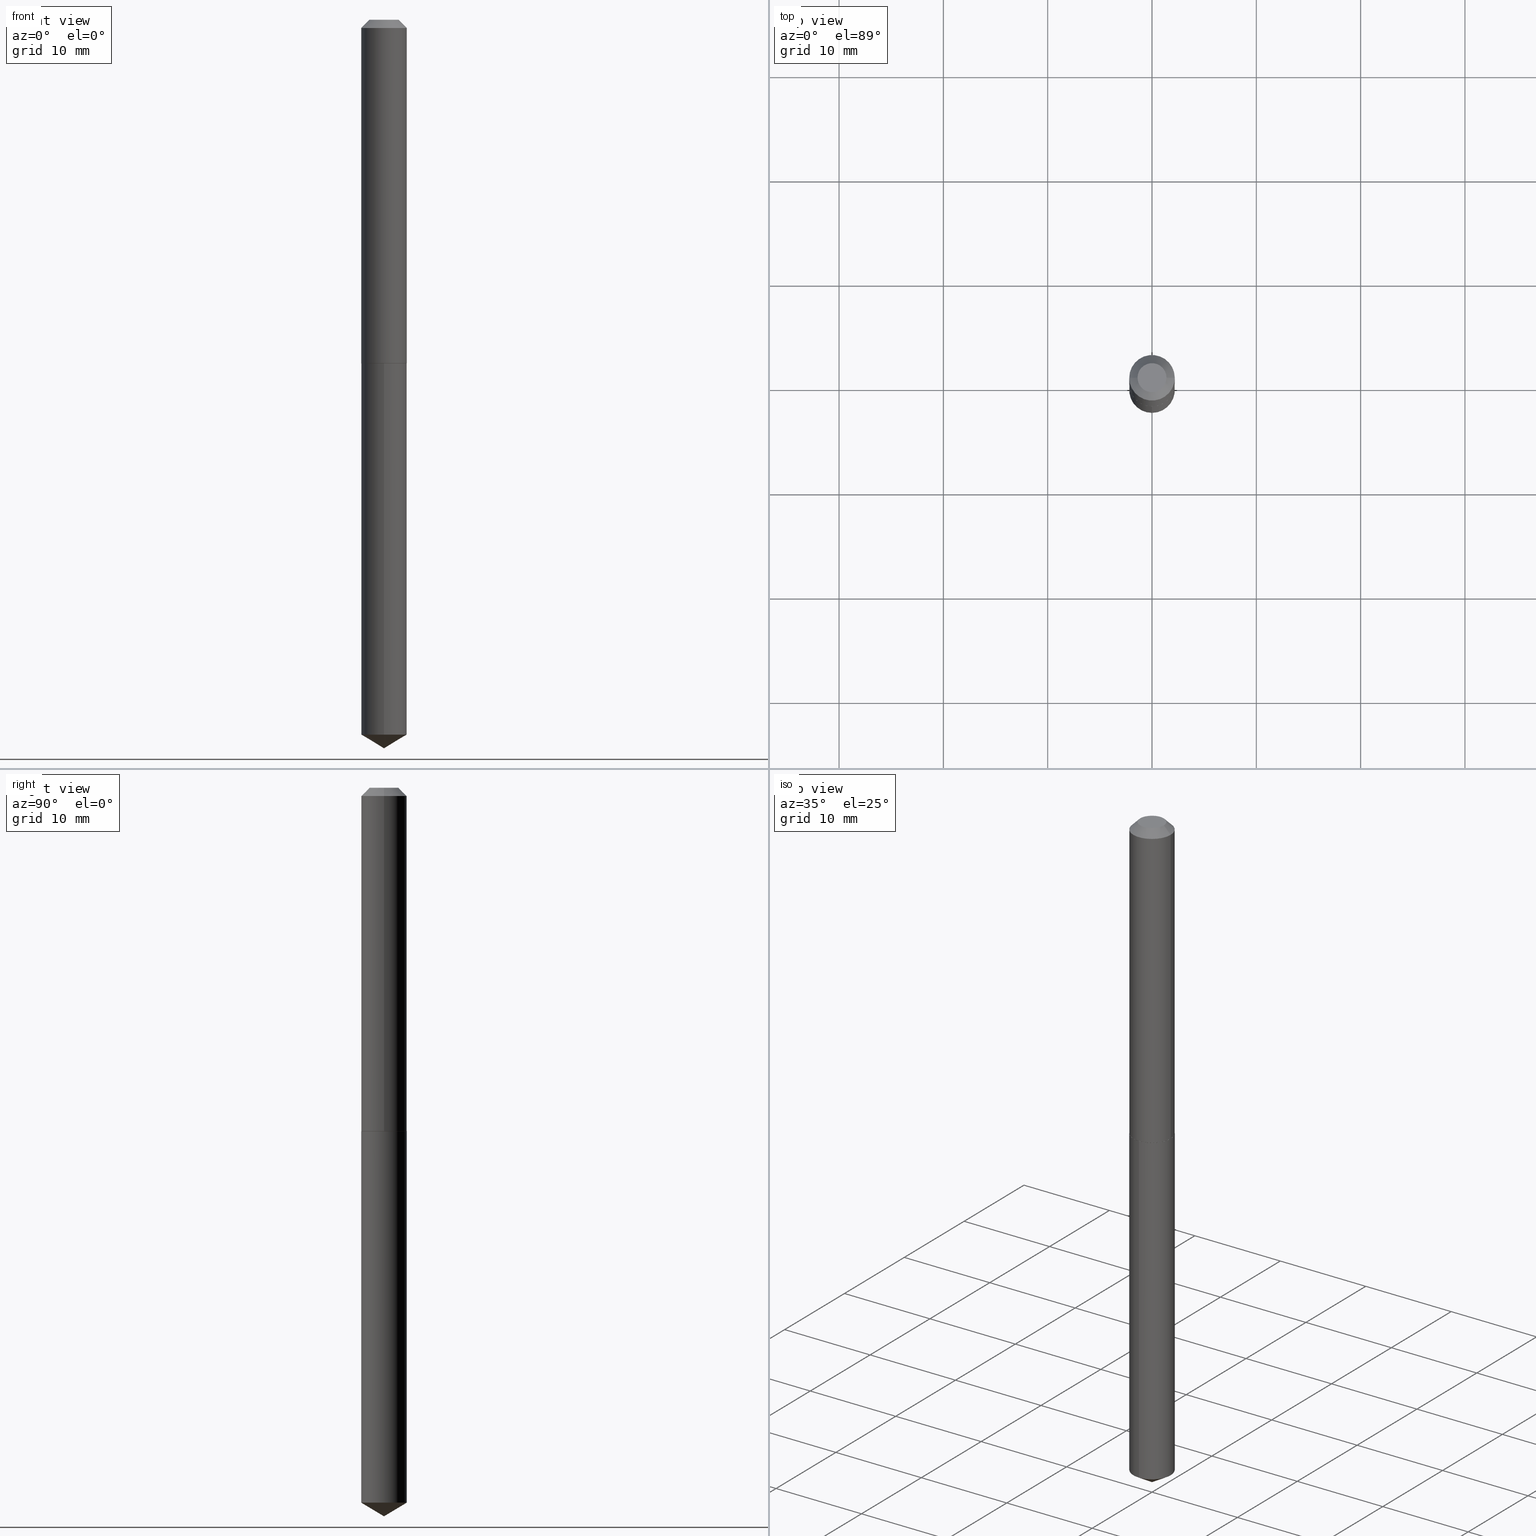
[diagram: canonical four-view strip — front | top / right | iso, engineering-drawing reading convention]
A machine part, canonical four-view strip (front | top / right | iso — engineering-drawing reading convention). The complete STEP part file that produces these views, byte-faithful:
ISO-10303-21;
HEADER;
FILE_DESCRIPTION (( 'STEP AP203' ),
    '1' );
FILE_NAME ('57149.STEP',
    '2024-04-22T22:57:38',
    ( '' ),
    ( '' ),
    'SwSTEP 2.0',
    'SolidWorks 2023',
    '' );
FILE_SCHEMA (( 'CONFIG_CONTROL_DESIGN' ));
ENDSEC;

DATA;
#1 = APPROVAL_STATUS ( 'not_yet_approved' ) ;
#2 = EDGE_CURVE ( 'NONE', #336, #278, #208, .T. ) ;
#3 = VERTEX_POINT ( 'NONE', #186 ) ;
#4 = PLANE ( 'NONE',  #227 ) ;
#5 = ORIENTED_EDGE ( 'NONE', *, *, #143, .T. ) ;
#6 = DIRECTION ( 'NONE',  ( 2.445533378666722655E-29, -3.491388867374276404E-15, -1.000000000000000000 ) ) ;
#7 = VERTEX_POINT ( 'NONE', #247 ) ;
#8 = DIRECTION ( 'NONE',  ( 6.090539988449787113E-15, 0.8571673007021152202, 0.5150380749100493816 ) ) ;
#9 = VECTOR ( 'NONE', #15, 39.37007874015748143 ) ;
#10 = CC_DESIGN_PERSON_AND_ORGANIZATION_ASSIGNMENT ( #244, #212, ( #274 ) ) ;
#11 = CARTESIAN_POINT ( 'NONE',  ( -6.001856421470686521E-16, -0.08595000000000943552, -2.698356029794580557 ) ) ;
#12 = DIRECTION ( 'NONE',  ( -6.982962677686268288E-15, -1.000000000000000000, 3.468864327941578437E-15 ) ) ;
#13 = CARTESIAN_POINT ( 'NONE',  ( 3.170305760338410638E-29, -4.526356407676253525E-15, -1.296399999999999775 ) ) ;
#14 = VECTOR ( 'NONE', #165, 39.37007874015748143 ) ;
#15 = DIRECTION ( 'NONE',  ( -2.445533378666723496E-29, 3.491388867374276404E-15, 1.000000000000000000 ) ) ;
#16 = DIRECTION ( 'NONE',  ( -2.445468806185136877E-29, 3.491481338843145188E-15, 1.000000000000000000 ) ) ;
#17 = CC_DESIGN_DATE_AND_TIME_ASSIGNMENT ( #168, #264, ( #279 ) ) ;
#18 = CARTESIAN_POINT ( 'NONE',  ( 3.171528494741502879E-29, -4.528102148345674239E-15, -1.296899999999999720 ) ) ;
#19 = DIMENSIONAL_EXPONENTS ( 1.000000000000000000, 0.000000000000000000, 0.000000000000000000, 0.000000000000000000, 0.000000000000000000, 0.000000000000000000, 0.000000000000000000 ) ;
#20 = CLOSED_SHELL ( 'NONE', ( #246, #136, #111, #282, #73 ) ) ;
#21 = CARTESIAN_POINT ( 'NONE',  ( 6.107114813858720685E-16, 0.08594999999999056173, -2.698356029794581890 ) ) ;
#22 = CIRCLE ( 'NONE', #162, 0.08594999999999998475 ) ;
#23 = EDGE_CURVE ( 'NONE', #60, #160, #71, .T. ) ;
#24 = FACE_OUTER_BOUND ( 'NONE', #88, .T. ) ;
#25 = VERTEX_POINT ( 'NONE', #285 ) ;
#26 = EDGE_CURVE ( 'NONE', #160, #25, #220, .T. ) ;
#27 = CARTESIAN_POINT ( 'NONE',  ( -0.05469999999999999168, 4.365224543888621036E-16, 1.469576158948197857E-19 ) ) ;
#28 = AXIS2_PLACEMENT_3D ( 'NONE', #81, #380, #381 ) ;
#29 = ORIENTED_EDGE ( 'NONE', *, *, #2, .T. ) ;
#30 = CONICAL_SURFACE ( 'NONE', #108, 0.08595000000000012352, 0.7853981633978409649 ) ;
#31 = ORIENTED_EDGE ( 'NONE', *, *, #378, .F. ) ;
#32 = PERSON_AND_ORGANIZATION ( #67, #387 ) ;
#33 = EDGE_LOOP ( 'NONE', ( #56, #44, #301, #149 ) ) ;
#34 = SECURITY_CLASSIFICATION_LEVEL ( 'unclassified' ) ;
#35 = ORIENTED_EDGE ( 'NONE', *, *, #315, .T. ) ;
#36 = AXIS2_PLACEMENT_3D ( 'NONE', #217, #344, #43 ) ;
#37 = LOCAL_TIME ( 18, 57, 38.00000000000000000, #209 ) ;
#38 = CARTESIAN_POINT ( 'NONE',  ( 3.170305760338410638E-29, -4.526356407676253525E-15, -1.296399999999999775 ) ) ;
#39 = DIRECTION ( 'NONE',  ( 1.000000000000000000, -6.982962677686266711E-15, 4.876156802008353939E-29 ) ) ;
#40 = CC_DESIGN_PERSON_AND_ORGANIZATION_ASSIGNMENT ( #63, #339, ( #274 ) ) ;
#41 = FACE_OUTER_BOUND ( 'NONE', #83, .T. ) ;
#42 = AXIS2_PLACEMENT_3D ( 'NONE', #13, #325, #137 ) ;
#43 = DIRECTION ( 'NONE',  ( 1.000000000000000000, -6.982962677686266711E-15, 4.876176775795936353E-29 ) ) ;
#44 = ORIENTED_EDGE ( 'NONE', *, *, #198, .T. ) ;
#45 = DIRECTION ( 'NONE',  ( -6.982962677686266711E-15, -1.000000000000000000, 3.178415350394722068E-15 ) ) ;
#46 = AXIS2_PLACEMENT_3D ( 'NONE', #100, #66, #184 ) ;
#47 = CC_DESIGN_APPROVAL ( #260, ( #279 ) ) ;
#48 = PRODUCT_DEFINITION_SHAPE ( 'NONE', 'NONE',  #279 ) ;
#49 = DIRECTION ( 'NONE',  ( 1.000000000000000000, -6.982962677686266711E-15, 0.000000000000000000 ) ) ;
#50 = CARTESIAN_POINT ( 'NONE',  ( -0.08595000000000005413, 6.107114813858064944E-16, -4.227824710074094392E-30 ) ) ;
#51 = CARTESIAN_POINT ( 'NONE',  ( 6.725049303230749519E-29, -9.601559237775213361E-15, -2.750000000000000000 ) ) ;
#52 = AXIS2_PLACEMENT_3D ( 'NONE', #68, #6, #191 ) ;
#53 = DIRECTION ( 'NONE',  ( -1.000000000000000000, 6.982962677686265922E-15, -4.876176775795935793E-29 ) ) ;
#54 = VECTOR ( 'NONE', #229, 39.37007874015748143 ) ;
#55 = CARTESIAN_POINT ( 'NONE',  ( 3.170305760338410638E-29, -4.526356407676253525E-15, -1.296399999999999775 ) ) ;
#56 = ORIENTED_EDGE ( 'NONE', *, *, #252, .F. ) ;
#57 = APPLICATION_PROTOCOL_DEFINITION ( 'international standard', 'config_control_design', 1994, #388 ) ;
#58 = ORIENTED_EDGE ( 'NONE', *, *, #69, .F. ) ;
#59 = CARTESIAN_POINT ( 'NONE',  ( 3.171528494741502879E-29, -4.528102148345674239E-15, -1.296899999999999720 ) ) ;
#60 = VERTEX_POINT ( 'NONE', #127 ) ;
#61 = CALENDAR_DATE ( 2024, 22, 4 ) ;
#62 = ORIENTED_EDGE ( 'NONE', *, *, #95, .F. ) ;
#63 = PERSON_AND_ORGANIZATION ( #67, #387 ) ;
#64 = DATE_TIME_ROLE ( 'classification_date' ) ;
#65 = FACE_OUTER_BOUND ( 'NONE', #33, .T. ) ;
#66 = DIRECTION ( 'NONE',  ( -2.445533378666723216E-29, 3.491388867374276010E-15, 1.000000000000000000 ) ) ;
#67 = PERSON ( 'UNSPECIFIED', 'UNSPECIFIED', 'UNSPECIFIED', ('UNSPECIFIED'), ('UNSPECIFIED'), ('UNSPECIFIED') ) ;
#68 = CARTESIAN_POINT ( 'NONE',  ( 3.171528494741502879E-29, -4.528102148345674239E-15, -1.296899999999999720 ) ) ;
#69 = EDGE_CURVE ( 'NONE', #121, #268, #309, .T. ) ;
#70 = LINE ( 'NONE', #130, #326 ) ;
#71 = CIRCLE ( 'NONE', #194, 0.08545000000000010920 ) ;
#72 = AXIS2_PLACEMENT_3D ( 'NONE', #291, #164, #288 ) ;
#73 = ADVANCED_FACE ( 'NONE', ( #245 ), #93, .F. ) ;
#74 = DIRECTION ( 'NONE',  ( -2.445533378666723496E-29, 3.491388867374276404E-15, 1.000000000000000000 ) ) ;
#75 = DIRECTION ( 'NONE',  ( -2.445533378666723216E-29, 3.491388867374276010E-15, 1.000000000000000000 ) ) ;
#76 = CYLINDRICAL_SURFACE ( 'NONE', #157, 0.08594999999999998475 ) ;
#77 = ADVANCED_FACE ( 'NONE', ( #41 ), #135, .T. ) ;
#78 = CC_DESIGN_SECURITY_CLASSIFICATION ( #125, ( #274 ) ) ;
#79 = DIRECTION ( 'NONE',  ( -1.000000000000000000, 6.982962677686266711E-15, 0.000000000000000000 ) ) ;
#80 = DIRECTION ( 'NONE',  ( -0.7071067811868251285, 7.493145998871357591E-15, 0.7071067811862699060 ) ) ;
#81 = CARTESIAN_POINT ( 'NONE',  ( 7.642090019328600035E-31, -1.091087918388489897E-16, -0.03125000000000020123 ) ) ;
#82 = AXIS2_PLACEMENT_3D ( 'NONE', #377, #192, #79 ) ;
#83 = EDGE_LOOP ( 'NONE', ( #205, #116, #150, #386 ) ) ;
#84 = DIRECTION ( 'NONE',  ( -2.445468806185136597E-29, 3.491481338843145583E-15, 1.000000000000000000 ) ) ;
#85 = EDGE_LOOP ( 'NONE', ( #101, #299, #239, #31 ) ) ;
#86 = ADVANCED_FACE ( 'NONE', ( #65 ), #218, .T. ) ;
#87 = APPROVAL_ROLE ( '' ) ;
#88 = EDGE_LOOP ( 'NONE', ( #273, #181 ) ) ;
#89 = AXIS2_PLACEMENT_3D ( 'NONE', #18, #196, #45 ) ;
#90 = DIRECTION ( 'NONE',  ( 0.000000000000000000, 0.000000000000000000, 1.000000000000000000 ) ) ;
#91 = ORIENTED_EDGE ( 'NONE', *, *, #255, .T. ) ;
#92 = APPROVAL_STATUS ( 'not_yet_approved' ) ;
#93 = PLANE ( 'NONE',  #52 ) ;
#94 = APPROVAL_STATUS ( 'not_yet_approved' ) ;
#95 = EDGE_CURVE ( 'NONE', #121, #207, #123, .T. ) ;
#96 = DIRECTION ( 'NONE',  ( -2.445468806185136597E-29, 3.491481338843145583E-15, 1.000000000000000000 ) ) ;
#97 = CONICAL_SURFACE ( 'NONE', #327, 65.52281426576873002, 1.029744258676656532 ) ;
#98 = CC_DESIGN_APPROVAL ( #249, ( #274 ) ) ;
#99 = APPROVAL_DATE_TIME ( #182, #120 ) ;
#100 = CARTESIAN_POINT ( 'NONE',  ( -8.955570863251014077E-28, 1.278548153095072444E-13, 36.62007874015748143 ) ) ;
#101 = ORIENTED_EDGE ( 'NONE', *, *, #172, .F. ) ;
#102 = ORIENTED_EDGE ( 'NONE', *, *, #385, .F. ) ;
#103 = VECTOR ( 'NONE', #187, 39.37007874015748143 ) ;
#104 = DIRECTION ( 'NONE',  ( -0.7071067811865452413, 2.468850131082233000E-15, -0.7071067811865497932 ) ) ;
#105 = DIRECTION ( 'NONE',  ( -2.445533378666723216E-29, 3.491388867374276010E-15, 1.000000000000000000 ) ) ;
#106 = PRODUCT ( '57149', '57149', '', ( #360 ) ) ;
#107 = CARTESIAN_POINT ( 'NONE',  ( 6.598835994337897816E-29, -9.421130128885029605E-15, -2.698356029794581445 ) ) ;
#108 = AXIS2_PLACEMENT_3D ( 'NONE', #228, #352, #286 ) ;
#109 = CYLINDRICAL_SURFACE ( 'NONE', #89, 0.08594999999999998475 ) ;
#110 = CARTESIAN_POINT ( 'NONE',  ( 0.08594999999999998475, -6.987685947473120447E-16, -0.03125000000000020123 ) ) ;
#111 = ADVANCED_FACE ( 'NONE', ( #155 ), #166, .T. ) ;
#112 = ORIENTED_EDGE ( 'NONE', *, *, #26, .F. ) ;
#113 = CONICAL_SURFACE ( 'NONE', #82, 0.08594999999999998475, 0.7853981633974450594 ) ;
#114 = MANIFOLD_SOLID_BREP ( 'Body-Move/Copy2[1]', #20 ) ;
#115 = DIRECTION ( 'NONE',  ( -2.438088387897960049E-29, 3.491481338843145188E-15, 1.000000000000000000 ) ) ;
#116 = ORIENTED_EDGE ( 'NONE', *, *, #23, .T. ) ;
#117 = DIRECTION ( 'NONE',  ( 1.000000000000000000, 0.000000000000000000, 0.000000000000000000 ) ) ;
#118 = EDGE_LOOP ( 'NONE', ( #211, #5, #62 ) ) ;
#119 = DIRECTION ( 'NONE',  ( 1.000000000000000000, -6.982962677686266711E-15, 4.876156802008353939E-29 ) ) ;
#120 = APPROVAL ( #92, 'UNSPECIFIED' ) ;
#121 = VERTEX_POINT ( 'NONE', #11 ) ;
#122 = CARTESIAN_POINT ( 'NONE',  ( 0.000000000000000000, 0.000000000000000000, 0.000000000000000000 ) ) ;
#123 = CIRCLE ( 'NONE', #287, 0.08594999999999998475 ) ;
#124 = ORIENTED_EDGE ( 'NONE', *, *, #384, .T. ) ;
#125 = SECURITY_CLASSIFICATION ( '', '', #34 ) ;
#126 = CALENDAR_DATE ( 2024, 22, 4 ) ;
#127 = CARTESIAN_POINT ( 'NONE',  ( -0.08545000000000010920, -3.918294153464556456E-15, -1.296899999999999498 ) ) ;
#128 = CARTESIAN_POINT ( 'NONE',  ( 0.000000000000000000, 0.000000000000000000, 0.000000000000000000 ) ) ;
#129 = DATE_AND_TIME ( #126, #320 ) ;
#130 = CARTESIAN_POINT ( 'NONE',  ( 6.725218260006444990E-29, -9.601319385279259619E-15, -2.750000000000000000 ) ) ;
#131 = DIRECTION ( 'NONE',  ( -6.982962677686266711E-15, -1.000000000000000000, 6.356830700789444137E-15 ) ) ;
#132 = COORDINATED_UNIVERSAL_TIME_OFFSET ( 5, 0, .BEHIND. ) ;
#133 = EDGE_LOOP ( 'NONE', ( #29, #362 ) ) ;
#134 = LINE ( 'NONE', #258, #54 ) ;
#135 = CONICAL_SURFACE ( 'NONE', #231, 0.08595000000000012352, 0.7853981633978409649 ) ;
#136 = ADVANCED_FACE ( 'NONE', ( #215 ), #97, .T. ) ;
#137 = DIRECTION ( 'NONE',  ( 1.000000000000000000, -6.982962677686262766E-15, 0.000000000000000000 ) ) ;
#138 = FACE_OUTER_BOUND ( 'NONE', #85, .T. ) ;
#139 = EDGE_CURVE ( 'NONE', #268, #3, #201, .T. ) ;
#140 = DIRECTION ( 'NONE',  ( -6.982962677686266711E-15, -1.000000000000000000, 3.178415350394722068E-15 ) ) ;
#141 = AXIS2_PLACEMENT_3D ( 'NONE', #203, #84, #119 ) ;
#142 = LINE ( 'NONE', #50, #376 ) ;
#143 = EDGE_CURVE ( 'NONE', #171, #207, #70, .T. ) ;
#144 = ORIENTED_EDGE ( 'NONE', *, *, #172, .T. ) ;
#145 = ADVANCED_FACE ( 'NONE', ( #251 ), #372, .T. ) ;
#146 = LOCAL_TIME ( 18, 57, 38.00000000000000000, #342 ) ;
#147 =( LENGTH_UNIT ( ) NAMED_UNIT ( * ) SI_UNIT ( $, .METRE. ) );
#148 = ORIENTED_EDGE ( 'NONE', *, *, #216, .F. ) ;
#149 = ORIENTED_EDGE ( 'NONE', *, *, #384, .F. ) ;
#150 = ORIENTED_EDGE ( 'NONE', *, *, #26, .T. ) ;
#151 = ORIENTED_EDGE ( 'NONE', *, *, #139, .F. ) ;
#152 = COORDINATED_UNIVERSAL_TIME_OFFSET ( 5, 0, .BEHIND. ) ;
#153 = CARTESIAN_POINT ( 'NONE',  ( -6.001856421471028690E-16, -0.08595000000000450890, -1.296899999999999498 ) ) ;
#154 = PERSON_AND_ORGANIZATION ( #67, #387 ) ;
#155 = FACE_OUTER_BOUND ( 'NONE', #340, .T. ) ;
#156 = DIRECTION ( 'NONE',  ( -2.445468806185136597E-29, 3.491481338843145583E-15, 1.000000000000000000 ) ) ;
#157 = AXIS2_PLACEMENT_3D ( 'NONE', #261, #75, #140 ) ;
#158 = FACE_OUTER_BOUND ( 'NONE', #310, .T. ) ;
#159 = ADVANCED_FACE ( 'NONE', ( #158 ), #369, .T. ) ;
#160 = VERTEX_POINT ( 'NONE', #293 ) ;
#161 = LINE ( 'NONE', #193, #375 ) ;
#162 = AXIS2_PLACEMENT_3D ( 'NONE', #297, #332, #329 ) ;
#163 = CARTESIAN_POINT ( 'NONE',  ( 6.725216791333488843E-29, -9.601319385279259619E-15, -2.750000000000000000 ) ) ;
#164 = DIRECTION ( 'NONE',  ( -2.445468806185136597E-29, 3.491481338843145583E-15, 1.000000000000000000 ) ) ;
#165 = DIRECTION ( 'NONE',  ( -5.985567269335949957E-15, -0.8571673007021116675, 0.5150380749100553768 ) ) ;
#166 = CONICAL_SURFACE ( 'NONE', #46, 65.52281426576873002, 1.029744258676656532 ) ;
#167 = APPROVAL_PERSON_ORGANIZATION ( #154, #120, #185 ) ;
#168 = DATE_AND_TIME ( #337, #189 ) ;
#169 =( CONVERSION_BASED_UNIT ( 'INCH', #296 ) LENGTH_UNIT ( ) NAMED_UNIT ( #19 ) );
#170 = EDGE_CURVE ( 'NONE', #336, #365, #161, .T. ) ;
#171 = VERTEX_POINT ( 'NONE', #163 ) ;
#172 = EDGE_CURVE ( 'NONE', #207, #3, #222, .T. ) ;
#173 = CARTESIAN_POINT ( 'NONE',  ( 3.171528494741502319E-29, -4.528102148345673450E-15, -1.296899999999999498 ) ) ;
#174 = ORIENTED_EDGE ( 'NONE', *, *, #170, .T. ) ;
#175 = DIRECTION ( 'NONE',  ( -2.445533378666723216E-29, 3.491388867374276010E-15, 1.000000000000000000 ) ) ;
#176 = ORIENTED_EDGE ( 'NONE', *, *, #317, .F. ) ;
#177 = DATE_AND_TIME ( #61, #37 ) ;
#178 = ORIENTED_EDGE ( 'NONE', *, *, #143, .F. ) ;
#179 = DATE_AND_TIME ( #219, #240 ) ;
#180 = EDGE_CURVE ( 'NONE', #160, #60, #363, .T. ) ;
#181 = ORIENTED_EDGE ( 'NONE', *, *, #23, .F. ) ;
#182 = DATE_AND_TIME ( #277, #146 ) ;
#183 = CIRCLE ( 'NONE', #42, 0.08595000000000012352 ) ;
#184 = DIRECTION ( 'NONE',  ( -6.982962677686268288E-15, -1.000000000000000000, 3.468864327941578437E-15 ) ) ;
#185 = APPROVAL_ROLE ( '' ) ;
#186 = CARTESIAN_POINT ( 'NONE',  ( 6.107114813858721671E-16, 0.08594999999999546059, -1.296899999999999942 ) ) ;
#187 = DIRECTION ( 'NONE',  ( 0.7071067811868251285, -2.468850131085164802E-15, 0.7071067811862699060 ) ) ;
#188 = DIRECTION ( 'NONE',  ( -2.445468806185136597E-29, 3.491481338843145583E-15, 1.000000000000000000 ) ) ;
#189 = LOCAL_TIME ( 18, 57, 38.00000000000000000, #241 ) ;
#190 = EDGE_CURVE ( 'NONE', #278, #7, #316, .T. ) ;
#191 = DIRECTION ( 'NONE',  ( 6.982962677686265922E-15, 1.000000000000000000, -3.491388867374276404E-15 ) ) ;
#192 = DIRECTION ( 'NONE',  ( 2.445468806185136597E-29, -3.491481338843145583E-15, -1.000000000000000000 ) ) ;
#193 = CARTESIAN_POINT ( 'NONE',  ( -0.08594999999999998475, 4.910768503082855200E-16, -0.03125000000000020123 ) ) ;
#194 = AXIS2_PLACEMENT_3D ( 'NONE', #373, #188, #350 ) ;
#195 = AXIS2_PLACEMENT_3D ( 'NONE', #351, #321, #53 ) ;
#196 = DIRECTION ( 'NONE',  ( -2.445533378666723216E-29, 3.491388867374276010E-15, 1.000000000000000000 ) ) ;
#197 = UNCERTAINTY_MEASURE_WITH_UNIT (LENGTH_MEASURE( 1.000000000000000082E-05 ), #169, 'distance_accuracy_value', 'NONE');
#198 = EDGE_CURVE ( 'NONE', #359, #25, #183, .T. ) ;
#199 = FACE_OUTER_BOUND ( 'NONE', #333, .T. ) ;
#200 = DIRECTION ( 'NONE',  ( 0.7071067811865452413, -7.319954787623248157E-15, -0.7071067811865497932 ) ) ;
#201 = CIRCLE ( 'NONE', #318, 0.08594999999999998475 ) ;
#202 = AXIS2_PLACEMENT_3D ( 'NONE', #122, #90, #117 ) ;
#203 = CARTESIAN_POINT ( 'NONE',  ( -3.593802655091171451E-48, 5.130997735076340613E-34, 1.469576158976815732E-19 ) ) ;
#204 = EDGE_LOOP ( 'NONE', ( #235, #265 ) ) ;
#205 = ORIENTED_EDGE ( 'NONE', *, *, #308, .F. ) ;
#206 = PERSON_AND_ORGANIZATION ( #67, #387 ) ;
#207 = VERTEX_POINT ( 'NONE', #21 ) ;
#208 = CIRCLE ( 'NONE', #226, 0.05469999999999999168 ) ;
#209 = COORDINATED_UNIVERSAL_TIME_OFFSET ( 5, 0, .BEHIND. ) ;
#210 = ORIENTED_EDGE ( 'NONE', *, *, #308, .T. ) ;
#211 = ORIENTED_EDGE ( 'NONE', *, *, #315, .F. ) ;
#212 = PERSON_AND_ORGANIZATION_ROLE ( 'creator' ) ;
#213 = DIRECTION ( 'NONE',  ( 1.000000000000000000, -6.982962677686266711E-15, 4.876176775795936353E-29 ) ) ;
#214 = PERSON_AND_ORGANIZATION ( #67, #387 ) ;
#215 = FACE_OUTER_BOUND ( 'NONE', #118, .T. ) ;
#216 = EDGE_CURVE ( 'NONE', #25, #7, #134, .T. ) ;
#217 = CARTESIAN_POINT ( 'NONE',  ( 0.000000000000000000, 0.000000000000000000, 0.000000000000000000 ) ) ;
#218 = CYLINDRICAL_SURFACE ( 'NONE', #348, 0.08595000000000005413 ) ;
#219 = CALENDAR_DATE ( 2024, 22, 4 ) ;
#220 = LINE ( 'NONE', #254, #103 ) ;
#221 = AXIS2_PLACEMENT_3D ( 'NONE', #107, #105, #382 ) ;
#222 = LINE ( 'NONE', #263, #9 ) ;
#223 = CARTESIAN_POINT ( 'NONE',  ( -6.001856421471028690E-16, -0.08595000000000450890, -1.296899999999999498 ) ) ;
#224 = FACE_OUTER_BOUND ( 'NONE', #270, .T. ) ;
#225 = CC_DESIGN_PERSON_AND_ORGANIZATION_ASSIGNMENT ( #302, #271, ( #279 ) ) ;
#226 = AXIS2_PLACEMENT_3D ( 'NONE', #346, #156, #39 ) ;
#227 = AXIS2_PLACEMENT_3D ( 'NONE', #173, #115, #230 ) ;
#228 = CARTESIAN_POINT ( 'NONE',  ( 3.170305760338410638E-29, -4.526356407676253525E-15, -1.296399999999999775 ) ) ;
#229 = DIRECTION ( 'NONE',  ( -2.445468806185136877E-29, 3.491481338843145188E-15, 1.000000000000000000 ) ) ;
#230 = DIRECTION ( 'NONE',  ( 1.000000000000000000, -6.982962677686265922E-15, 4.876176775795935793E-29 ) ) ;
#231 = AXIS2_PLACEMENT_3D ( 'NONE', #38, #96, #367 ) ;
#232 = MANIFOLD_SOLID_BREP ( 'Body-Move/Copy2[2]', #305 ) ;
#233 = AXIS2_PLACEMENT_3D ( 'NONE', #55, #389, #298 ) ;
#234 = ADVANCED_FACE ( 'NONE', ( #356 ), #319, .F. ) ;
#235 = ORIENTED_EDGE ( 'NONE', *, *, #139, .T. ) ;
#236 = APPLICATION_PROTOCOL_DEFINITION ( 'international standard', 'config_control_design', 1994, #347 ) ;
#237 = ORIENTED_EDGE ( 'NONE', *, *, #190, .F. ) ;
#238 = CARTESIAN_POINT ( 'NONE',  ( -0.08594999999999998475, -1.707021118371743832E-15, -0.03125000000000020123 ) ) ;
#239 = ORIENTED_EDGE ( 'NONE', *, *, #69, .T. ) ;
#240 = LOCAL_TIME ( 18, 57, 38.00000000000000000, #152 ) ;
#241 = COORDINATED_UNIVERSAL_TIME_OFFSET ( 5, 0, .BEHIND. ) ;
#242 = EDGE_LOOP ( 'NONE', ( #304, #144, #151, #58 ) ) ;
#243 = CC_DESIGN_PERSON_AND_ORGANIZATION_ASSIGNMENT ( #214, #371, ( #125 ) ) ;
#244 = PERSON_AND_ORGANIZATION ( #67, #387 ) ;
#245 = FACE_OUTER_BOUND ( 'NONE', #204, .T. ) ;
#246 = ADVANCED_FACE ( 'NONE', ( #354 ), #109, .T. ) ;
#247 = CARTESIAN_POINT ( 'NONE',  ( 0.08594999999999998475, -7.092944339859834254E-16, -0.03125000000000020123 ) ) ;
#248 = APPROVAL_ROLE ( '' ) ;
#249 = APPROVAL ( #94, 'UNSPECIFIED' ) ;
#250 = CIRCLE ( 'NONE', #311, 0.08594999999999998475 ) ;
#251 = FACE_OUTER_BOUND ( 'NONE', #390, .T. ) ;
#252 = EDGE_CURVE ( 'NONE', #359, #365, #142, .T. ) ;
#253 = CARTESIAN_POINT ( 'NONE',  ( 3.171528494741502879E-29, -4.528102148345674239E-15, -1.296899999999999720 ) ) ;
#254 = CARTESIAN_POINT ( 'NONE',  ( 0.08595000000000012352, -5.126542049823388540E-15, -1.296399999999999775 ) ) ;
#255 = EDGE_CURVE ( 'NONE', #7, #365, #250, .T. ) ;
#256 = CARTESIAN_POINT ( 'NONE',  ( 0.05469999999999999168, -5.370189176127073137E-16, 1.469576159008942410E-19 ) ) ;
#257 = APPROVAL_PERSON_ORGANIZATION ( #383, #249, #248 ) ;
#258 = CARTESIAN_POINT ( 'NONE',  ( 0.08595000000000005413, -6.001856421471350150E-16, 4.191073938796610043E-30 ) ) ;
#259 = EDGE_CURVE ( 'NONE', #207, #121, #266, .T. ) ;
#260 = APPROVAL ( #1, 'UNSPECIFIED' ) ;
#261 = CARTESIAN_POINT ( 'NONE',  ( 3.171528494741502879E-29, -4.528102148345674239E-15, -1.296899999999999720 ) ) ;
#262 = LINE ( 'NONE', #355, #334 ) ;
#263 = CARTESIAN_POINT ( 'NONE',  ( 6.107114813858375558E-16, 0.08594999999999546059, -1.296899999999999942 ) ) ;
#264 = DATE_TIME_ROLE ( 'creation_date' ) ;
#265 = ORIENTED_EDGE ( 'NONE', *, *, #378, .T. ) ;
#266 = CIRCLE ( 'NONE', #221, 0.08594999999999998475 ) ;
#267 =( NAMED_UNIT ( * ) PLANE_ANGLE_UNIT ( ) SI_UNIT ( $, .RADIAN. ) );
#268 = VERTEX_POINT ( 'NONE', #223 ) ;
#269 = PERSON_AND_ORGANIZATION_ROLE ( 'design_owner' ) ;
#270 = EDGE_LOOP ( 'NONE', ( #176, #303, #91, #275 ) ) ;
#271 = PERSON_AND_ORGANIZATION_ROLE ( 'creator' ) ;
#272 = CC_DESIGN_DATE_AND_TIME_ASSIGNMENT ( #129, #64, ( #125 ) ) ;
#273 = ORIENTED_EDGE ( 'NONE', *, *, #180, .F. ) ;
#274 = PRODUCT_DEFINITION_FORMATION_WITH_SPECIFIED_SOURCE ( 'ANY', '', #106, .NOT_KNOWN. ) ;
#275 = ORIENTED_EDGE ( 'NONE', *, *, #170, .F. ) ;
#276 = ADVANCED_FACE ( 'NONE', ( #199 ), #30, .T. ) ;
#277 = CALENDAR_DATE ( 2024, 22, 4 ) ;
#278 = VERTEX_POINT ( 'NONE', #256 ) ;
#279 = PRODUCT_DEFINITION ( 'UNKNOWN', '', #274, #324 ) ;
#280 = SHAPE_DEFINITION_REPRESENTATION ( #48, #322 ) ;
#281 = DIRECTION ( 'NONE',  ( -6.982962677686266711E-15, -1.000000000000000000, 3.178415350394722068E-15 ) ) ;
#282 = ADVANCED_FACE ( 'NONE', ( #138 ), #76, .T. ) ;
#283 = CIRCLE ( 'NONE', #141, 0.05469999999999999168 ) ;
#284 = DIRECTION ( 'NONE',  ( -2.445533378666723216E-29, 3.491388867374276010E-15, 1.000000000000000000 ) ) ;
#285 = CARTESIAN_POINT ( 'NONE',  ( 0.08595000000000012352, -5.126542049823388540E-15, -1.296399999999999775 ) ) ;
#286 = DIRECTION ( 'NONE',  ( 1.000000000000000000, -6.982962677686262766E-15, 0.000000000000000000 ) ) ;
#287 = AXIS2_PLACEMENT_3D ( 'NONE', #314, #284, #131 ) ;
#288 = DIRECTION ( 'NONE',  ( 1.000000000000000000, -6.982962677686268288E-15, 0.000000000000000000 ) ) ;
#289 =( GEOMETRIC_REPRESENTATION_CONTEXT ( 3 ) GLOBAL_UNCERTAINTY_ASSIGNED_CONTEXT ( ( #197 ) ) GLOBAL_UNIT_ASSIGNED_CONTEXT ( ( #169, #267, #300 ) ) REPRESENTATION_CONTEXT ( 'NONE', 'WORKASPACE' ) );
#290 = ADVANCED_FACE ( 'NONE', ( #224 ), #113, .T. ) ;
#291 = CARTESIAN_POINT ( 'NONE',  ( 3.171528494741502319E-29, -4.528102148345673450E-15, -1.296899999999999498 ) ) ;
#292 = CARTESIAN_POINT ( 'NONE',  ( 7.642090019328600035E-31, -1.091087918388489897E-16, -0.03125000000000020123 ) ) ;
#293 = CARTESIAN_POINT ( 'NONE',  ( 0.08545000000000010920, -5.124796309153966247E-15, -1.296899999999999498 ) ) ;
#294 = VECTOR ( 'NONE', #74, 39.37007874015748143 ) ;
#295 = CIRCLE ( 'NONE', #233, 0.08595000000000012352 ) ;
#296 = LENGTH_MEASURE_WITH_UNIT ( LENGTH_MEASURE( 0.02539999999999999897 ), #147 );
#297 = CARTESIAN_POINT ( 'NONE',  ( 7.642090019328600035E-31, -1.091087918388489897E-16, -0.03125000000000020123 ) ) ;
#298 = DIRECTION ( 'NONE',  ( 1.000000000000000000, -6.982962677686262766E-15, 0.000000000000000000 ) ) ;
#299 = ORIENTED_EDGE ( 'NONE', *, *, #259, .T. ) ;
#300 =( NAMED_UNIT ( * ) SI_UNIT ( $, .STERADIAN. ) SOLID_ANGLE_UNIT ( ) );
#301 = ORIENTED_EDGE ( 'NONE', *, *, #216, .T. ) ;
#302 = PERSON_AND_ORGANIZATION ( #67, #387 ) ;
#303 = ORIENTED_EDGE ( 'NONE', *, *, #190, .T. ) ;
#304 = ORIENTED_EDGE ( 'NONE', *, *, #95, .T. ) ;
#305 = CLOSED_SHELL ( 'NONE', ( #290, #145, #276, #345, #77, #86, #159, #234 ) ) ;
#306 = CIRCLE ( 'NONE', #341, 0.08594999999999998475 ) ;
#307 = DIRECTION ( 'NONE',  ( -2.445533378666723216E-29, 3.491388867374276010E-15, 1.000000000000000000 ) ) ;
#308 = EDGE_CURVE ( 'NONE', #60, #359, #262, .T. ) ;
#309 = LINE ( 'NONE', #153, #294 ) ;
#310 = EDGE_LOOP ( 'NONE', ( #237, #330, #174, #124 ) ) ;
#311 = AXIS2_PLACEMENT_3D ( 'NONE', #292, #379, #49 ) ;
#312 = CARTESIAN_POINT ( 'NONE',  ( -8.955570863251014077E-28, 1.278548153095072444E-13, 36.62007874015748143 ) ) ;
#313 = PRODUCT_RELATED_PRODUCT_CATEGORY ( 'detail', '', ( #106 ) ) ;
#314 = CARTESIAN_POINT ( 'NONE',  ( 6.598835994337897816E-29, -9.421130128885029605E-15, -2.698356029794581445 ) ) ;
#315 = EDGE_CURVE ( 'NONE', #171, #121, #323, .T. ) ;
#316 = LINE ( 'NONE', #110, #370 ) ;
#317 = EDGE_CURVE ( 'NONE', #278, #336, #283, .T. ) ;
#318 = AXIS2_PLACEMENT_3D ( 'NONE', #253, #307, #281 ) ;
#319 = PLANE ( 'NONE',  #195 ) ;
#320 = LOCAL_TIME ( 18, 57, 38.00000000000000000, #132 ) ;
#321 = DIRECTION ( 'NONE',  ( 2.438088387897960049E-29, -3.491481338843145188E-15, -1.000000000000000000 ) ) ;
#322 = ADVANCED_BREP_SHAPE_REPRESENTATION ( '57149', ( #114, #232, #202 ), #289 ) ;
#323 = LINE ( 'NONE', #51, #14 ) ;
#324 = DESIGN_CONTEXT ( 'detailed design', #347, 'design' ) ;
#325 = DIRECTION ( 'NONE',  ( -2.445468806185136597E-29, 3.491481338843145583E-15, 1.000000000000000000 ) ) ;
#326 = VECTOR ( 'NONE', #8, 39.37007874015748854 ) ;
#327 = AXIS2_PLACEMENT_3D ( 'NONE', #312, #343, #12 ) ;
#328 = APPROVAL_PERSON_ORGANIZATION ( #206, #260, #87 ) ;
#329 = DIRECTION ( 'NONE',  ( 1.000000000000000000, -6.982962677686266711E-15, 0.000000000000000000 ) ) ;
#330 = ORIENTED_EDGE ( 'NONE', *, *, #2, .F. ) ;
#331 = ORIENTED_EDGE ( 'NONE', *, *, #255, .F. ) ;
#332 = DIRECTION ( 'NONE',  ( -2.445468806185136597E-29, 3.491481338843145583E-15, 1.000000000000000000 ) ) ;
#333 = EDGE_LOOP ( 'NONE', ( #358, #210, #102, #112 ) ) ;
#334 = VECTOR ( 'NONE', #80, 39.37007874015748143 ) ;
#335 = APPROVAL_DATE_TIME ( #177, #260 ) ;
#336 = VERTEX_POINT ( 'NONE', #27 ) ;
#337 = CALENDAR_DATE ( 2024, 22, 4 ) ;
#338 = ORIENTED_EDGE ( 'NONE', *, *, #259, .F. ) ;
#339 = PERSON_AND_ORGANIZATION_ROLE ( 'design_supplier' ) ;
#340 = EDGE_LOOP ( 'NONE', ( #178, #35, #338 ) ) ;
#341 = AXIS2_PLACEMENT_3D ( 'NONE', #59, #175, #364 ) ;
#342 = COORDINATED_UNIVERSAL_TIME_OFFSET ( 5, 0, .BEHIND. ) ;
#343 = DIRECTION ( 'NONE',  ( -2.445533378666723216E-29, 3.491388867374276010E-15, 1.000000000000000000 ) ) ;
#344 = DIRECTION ( 'NONE',  ( -2.445468806185136597E-29, 3.491481338843145583E-15, 1.000000000000000000 ) ) ;
#345 = ADVANCED_FACE ( 'NONE', ( #24 ), #4, .F. ) ;
#346 = CARTESIAN_POINT ( 'NONE',  ( -3.593802655091171451E-48, 5.130997735076340613E-34, 1.469576158976815732E-19 ) ) ;
#347 = APPLICATION_CONTEXT ( 'configuration controlled 3d designs of mechanical parts and assemblies' ) ;
#348 = AXIS2_PLACEMENT_3D ( 'NONE', #128, #368, #213 ) ;
#349 = CC_DESIGN_APPROVAL ( #120, ( #125 ) ) ;
#350 = DIRECTION ( 'NONE',  ( 1.000000000000000000, -6.982962677686268288E-15, 0.000000000000000000 ) ) ;
#351 = CARTESIAN_POINT ( 'NONE',  ( -1.796901327545585725E-48, 2.565498867538170307E-34, 7.347880794884078658E-20 ) ) ;
#352 = DIRECTION ( 'NONE',  ( -2.445468806185136597E-29, 3.491481338843145583E-15, 1.000000000000000000 ) ) ;
#353 = CC_DESIGN_PERSON_AND_ORGANIZATION_ASSIGNMENT ( #32, #269, ( #106 ) ) ;
#354 = FACE_OUTER_BOUND ( 'NONE', #242, .T. ) ;
#355 = CARTESIAN_POINT ( 'NONE',  ( -0.08595000000000012352, -3.915644926290446044E-15, -1.296399999999999775 ) ) ;
#356 = FACE_OUTER_BOUND ( 'NONE', #133, .T. ) ;
#357 = CARTESIAN_POINT ( 'NONE',  ( -0.08595000000000012352, -3.915644926290446044E-15, -1.296399999999999775 ) ) ;
#358 = ORIENTED_EDGE ( 'NONE', *, *, #180, .T. ) ;
#359 = VERTEX_POINT ( 'NONE', #357 ) ;
#360 = MECHANICAL_CONTEXT ( 'NONE', #388, 'mechanical' ) ;
#361 = ORIENTED_EDGE ( 'NONE', *, *, #252, .T. ) ;
#362 = ORIENTED_EDGE ( 'NONE', *, *, #317, .T. ) ;
#363 = CIRCLE ( 'NONE', #72, 0.08545000000000010920 ) ;
#364 = DIRECTION ( 'NONE',  ( -6.982962677686266711E-15, -1.000000000000000000, 3.178415350394722068E-15 ) ) ;
#365 = VERTEX_POINT ( 'NONE', #238 ) ;
#366 = APPROVAL_DATE_TIME ( #179, #249 ) ;
#367 = DIRECTION ( 'NONE',  ( 1.000000000000000000, -6.982962677686262766E-15, 0.000000000000000000 ) ) ;
#368 = DIRECTION ( 'NONE',  ( -2.445468806185136597E-29, 3.491481338843145583E-15, 1.000000000000000000 ) ) ;
#369 = CONICAL_SURFACE ( 'NONE', #28, 0.08594999999999998475, 0.7853981633974450594 ) ;
#370 = VECTOR ( 'NONE', #200, 39.37007874015748143 ) ;
#371 = PERSON_AND_ORGANIZATION_ROLE ( 'classification_officer' ) ;
#372 = CYLINDRICAL_SURFACE ( 'NONE', #36, 0.08595000000000005413 ) ;
#373 = CARTESIAN_POINT ( 'NONE',  ( 3.171528494741502319E-29, -4.528102148345673450E-15, -1.296899999999999498 ) ) ;
#374 = ORIENTED_EDGE ( 'NONE', *, *, #385, .T. ) ;
#375 = VECTOR ( 'NONE', #104, 39.37007874015748143 ) ;
#376 = VECTOR ( 'NONE', #16, 39.37007874015748143 ) ;
#377 = CARTESIAN_POINT ( 'NONE',  ( 7.642090019328600035E-31, -1.091087918388489897E-16, -0.03125000000000020123 ) ) ;
#378 = EDGE_CURVE ( 'NONE', #3, #268, #306, .T. ) ;
#379 = DIRECTION ( 'NONE',  ( -2.445468806185136597E-29, 3.491481338843145583E-15, 1.000000000000000000 ) ) ;
#380 = DIRECTION ( 'NONE',  ( 2.445468806185136597E-29, -3.491481338843145583E-15, -1.000000000000000000 ) ) ;
#381 = DIRECTION ( 'NONE',  ( -1.000000000000000000, 6.982962677686266711E-15, 0.000000000000000000 ) ) ;
#382 = DIRECTION ( 'NONE',  ( -6.982962677686266711E-15, -1.000000000000000000, 6.356830700789444137E-15 ) ) ;
#383 = PERSON_AND_ORGANIZATION ( #67, #387 ) ;
#384 = EDGE_CURVE ( 'NONE', #365, #7, #22, .T. ) ;
#385 = EDGE_CURVE ( 'NONE', #25, #359, #295, .T. ) ;
#386 = ORIENTED_EDGE ( 'NONE', *, *, #198, .F. ) ;
#387 = ORGANIZATION ( 'UNSPECIFIED', 'UNSPECIFIED', '' ) ;
#388 = APPLICATION_CONTEXT ( 'configuration controlled 3d designs of mechanical parts and assemblies' ) ;
#389 = DIRECTION ( 'NONE',  ( -2.445468806185136597E-29, 3.491481338843145583E-15, 1.000000000000000000 ) ) ;
#390 = EDGE_LOOP ( 'NONE', ( #374, #361, #331, #148 ) ) ;
ENDSEC;
END-ISO-10303-21;
